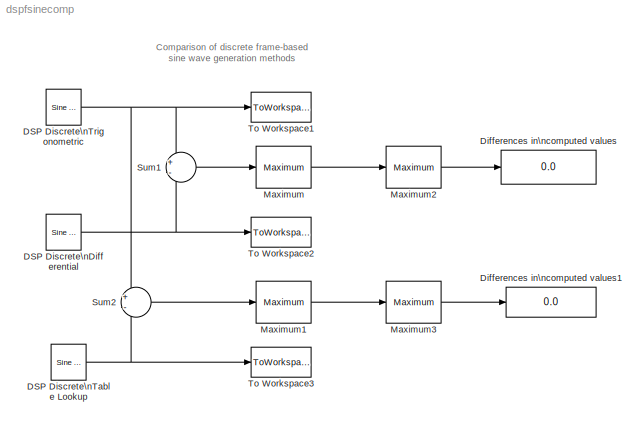
MODEL dspfsinecomp
KIND model
CONFIG AbsTol = auto
CONFIG FixedStep = auto
CONFIG MaxStep = auto
CONFIG MinStep = auto
CONFIG RelTol = 1e-3
CONFIG Solver = FixedStepDiscrete
CONFIG SolverMode = Auto
CONFIG StartTime = 0.0
CONFIG StopTime = inf
BLOCK [Reference] DSP Discrete\nDifferential  REF=dspsrcs3/Sine Wave
  Amplitude = 1
  CompMethod = Differential
  Frequency = 1e4
  OutComplex = Real
  Phase = 0
  Ports = [0, 1]
  ResetState = Restart at time zero
  SampleMode = Discrete
  SampleTime = 1e-5
  SamplesPerFrame = 32
  SourceBlock = dspsrcs3/Sine Wave
  SourceType = Sine Wave
BLOCK [Reference] DSP Discrete\nTable Lookup  REF=dspsrcs3/Sine Wave
  Amplitude = 1
  CompMethod = Table Lookup
  Frequency = 1e4
  OutComplex = Real
  Phase = 0
  Ports = [0, 1]
  ResetState = Restart at time zero
  SampleMode = Discrete
  SampleTime = 1e-5
  SamplesPerFrame = 32
  SourceBlock = dspsrcs3/Sine Wave
  SourceType = Sine Wave
BLOCK [Reference] DSP Discrete\nTrigonometric  REF=dspsrcs3/Sine Wave
  Amplitude = 1
  CompMethod = Trigonometric Fcn
  Frequency = 1e4
  OutComplex = Real
  Phase = 0
  Ports = [0, 1]
  ResetState = Restart at time zero
  SampleMode = Discrete
  SampleTime = 1e-5
  SamplesPerFrame = 32
  SourceBlock = dspsrcs3/Sine Wave
  SourceType = Sine Wave
BLOCK [Display] Differences in\ncomputed values
  Decimation = 1
  Floating = off
  Format = short
  Ports = [1]
  SampleTime = -1
BLOCK [Display] Differences in\ncomputed values1
  Decimation = 1
  Floating = off
  Format = short
  Ports = [1]
  SampleTime = -1
BLOCK [Reference] Maximum  REF=dspstat3/Maximum
  Ports = [1, 1]
  SourceBlock = dspstat3/Maximum
  SourceType = Maximum
  fcn = Running
  reset = None
BLOCK [Reference] Maximum1  REF=dspstat3/Maximum
  Ports = [1, 1]
  SourceBlock = dspstat3/Maximum
  SourceType = Maximum
  fcn = Running
  reset = None
BLOCK [Reference] Maximum2  REF=dspstat3/Maximum
  Ports = [1, 1]
  SourceBlock = dspstat3/Maximum
  SourceType = Maximum
  fcn = Value
  reset = None
BLOCK [Reference] Maximum3  REF=dspstat3/Maximum
  Ports = [1, 1]
  SourceBlock = dspstat3/Maximum
  SourceType = Maximum
  fcn = Value
  reset = None
BLOCK [Sum] Sum1
  IconShape = round
  Inputs = +-
  Ports = [2, 1]
  SaturateOnIntegerOverflow = on
BLOCK [Sum] Sum2
  IconShape = round
  Inputs = +-
  Ports = [2, 1]
  SaturateOnIntegerOverflow = on
BLOCK [ToWorkspace] To Workspace1
  Decimation = 1
  MaxDataPoints = inf
  SampleTime = -1
  SaveFormat = Array
  VariableName = y1
BLOCK [ToWorkspace] To Workspace2
  Decimation = 1
  MaxDataPoints = inf
  SampleTime = -1
  SaveFormat = Array
  VariableName = y2
BLOCK [ToWorkspace] To Workspace3
  Decimation = 1
  MaxDataPoints = inf
  SampleTime = -1
  SaveFormat = Array
  VariableName = y3
NET DSP Discrete\nDifferential:1 -> Sum1:2, To Workspace2:1
NET DSP Discrete\nTable Lookup:1 -> Sum2:2, To Workspace3:1
NET DSP Discrete\nTrigonometric:1 -> Sum1:1, Sum2:1, To Workspace1:1
LINE Maximum1:1 -> Maximum3:1
LINE Maximum2:1 -> Differences in\ncomputed values:1
LINE Maximum3:1 -> Differences in\ncomputed values1:1
LINE Maximum:1 -> Maximum2:1
LINE Sum1:1 -> Maximum:1
LINE Sum2:1 -> Maximum1:1
note: NET lines group one-source signal fan-out (src -> all destinations, sorted); 1:1 wires keep LINE
